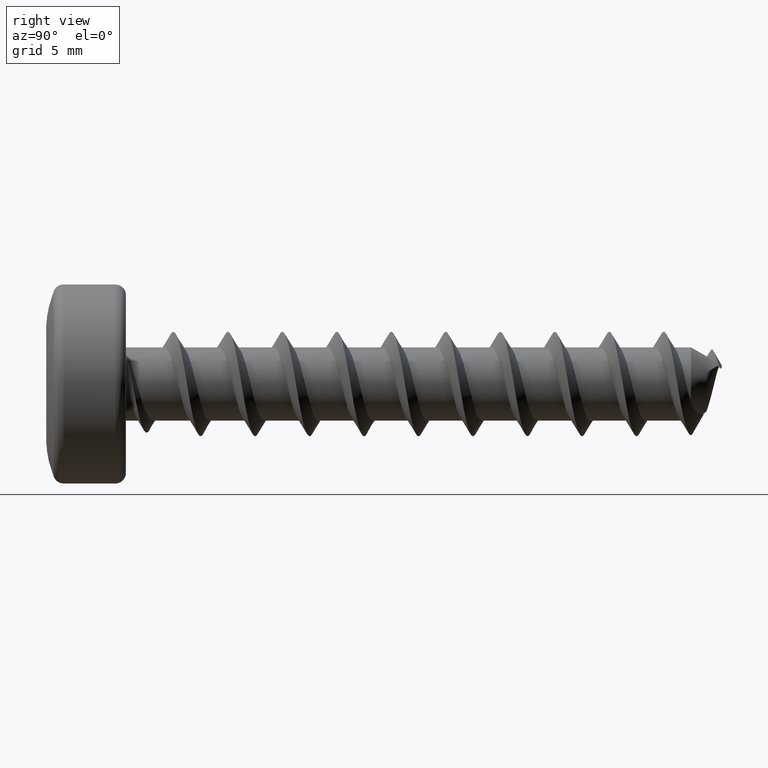
[diagram: clean part render]
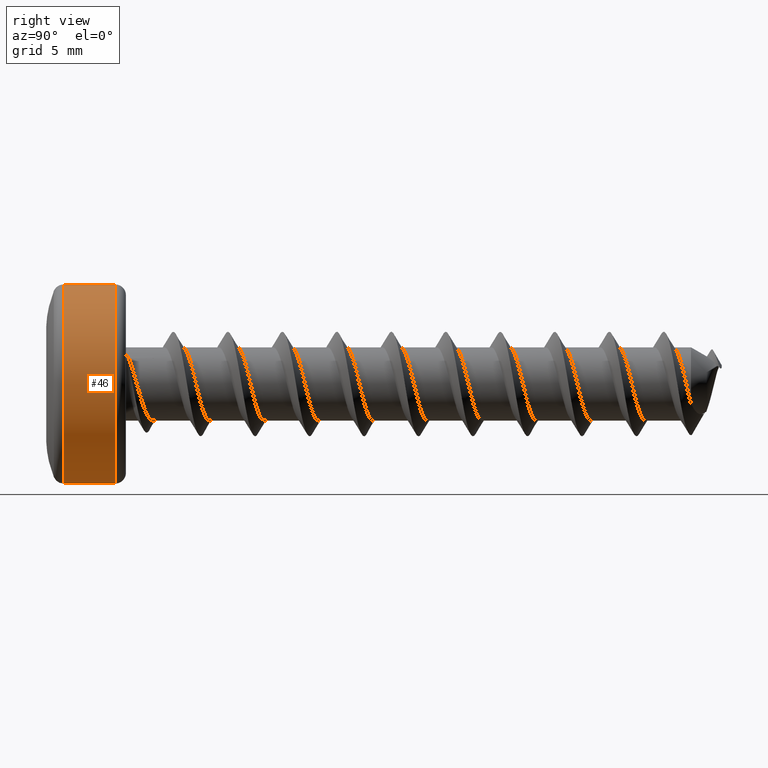
[diagram: same view with one face highlighted and labeled with its STEP entity id]
A machine part, right view. The second image highlights one B-rep face of the part: STEP entity #46.
In plain terms, the highlighted cylindrical surface (bore or boss wall) has radius 4.75 mm, axis along (-0, -1, -0).
Its self-contained STEP definition (entity closure, byte-faithful):
#4 = FACE_OUTER_BOUND ( 'NONE', #3187, .T. ) ;
#46 = ADVANCED_FACE ( 'NONE', ( #1771, #4 ), #4062, .T. ) ;
#99 = DIRECTION ( 'NONE',  ( 0.000000000000000000, 0.000000000000000000, 1.000000000000000000 ) ) ;
#562 = CARTESIAN_POINT ( 'NONE',  ( 0.000000000000000000, 0.8245518446587281058, 4.749999999999999112 ) ) ;
#625 = ORIENTED_EDGE ( 'NONE', *, *, #682, .T. ) ;
#682 = EDGE_CURVE ( 'NONE', #1986, #1986, #3493, .T. ) ;
#727 = CARTESIAN_POINT ( 'NONE',  ( 0.000000000000000000, 0.8245518446587281058, 0.000000000000000000 ) ) ;
#758 = CARTESIAN_POINT ( 'NONE',  ( 0.000000000000000000, 3.299999999999999822, 0.000000000000000000 ) ) ;
#855 = ORIENTED_EDGE ( 'NONE', *, *, #2065, .T. ) ;
#924 = AXIS2_PLACEMENT_3D ( 'NONE', #758, #1359, #3678 ) ;
#956 = DIRECTION ( 'NONE',  ( 0.000000000000000000, 0.000000000000000000, -1.000000000000000000 ) ) ;
#1030 = DIRECTION ( 'NONE',  ( 0.000000000000000000, 1.000000000000000000, 0.000000000000000000 ) ) ;
#1359 = DIRECTION ( 'NONE',  ( -0.000000000000000000, -1.000000000000000000, -0.000000000000000000 ) ) ;
#1771 = FACE_OUTER_BOUND ( 'NONE', #3955, .T. ) ;
#1890 = CARTESIAN_POINT ( 'NONE',  ( 0.000000000000000000, 3.299999999999999822, 4.749999999999999112 ) ) ;
#1986 = VERTEX_POINT ( 'NONE', #562 ) ;
#2065 = EDGE_CURVE ( 'NONE', #3264, #3264, #4127, .T. ) ;
#2218 = DIRECTION ( 'NONE',  ( -0.000000000000000000, -1.000000000000000000, -0.000000000000000000 ) ) ;
#2244 = AXIS2_PLACEMENT_3D ( 'NONE', #3226, #2218, #956 ) ;
#3187 = EDGE_LOOP ( 'NONE', ( #625 ) ) ;
#3226 = CARTESIAN_POINT ( 'NONE',  ( 0.000000000000000000, 0.000000000000000000, 0.000000000000000000 ) ) ;
#3264 = VERTEX_POINT ( 'NONE', #1890 ) ;
#3493 = CIRCLE ( 'NONE', #3848, 4.749999999999999112 ) ;
#3678 = DIRECTION ( 'NONE',  ( 0.000000000000000000, 0.000000000000000000, 1.000000000000000000 ) ) ;
#3848 = AXIS2_PLACEMENT_3D ( 'NONE', #727, #1030, #99 ) ;
#3955 = EDGE_LOOP ( 'NONE', ( #855 ) ) ;
#4062 = CYLINDRICAL_SURFACE ( 'NONE', #2244, 4.749999999999999112 ) ;
#4127 = CIRCLE ( 'NONE', #924, 4.749999999999999112 ) ;